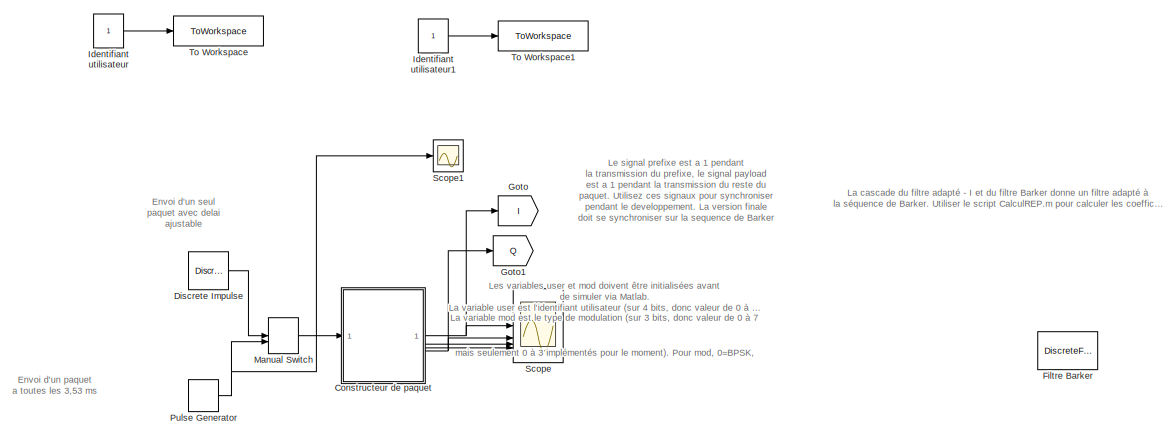
[diagram: root canvas - part 1/2, full width, top band]
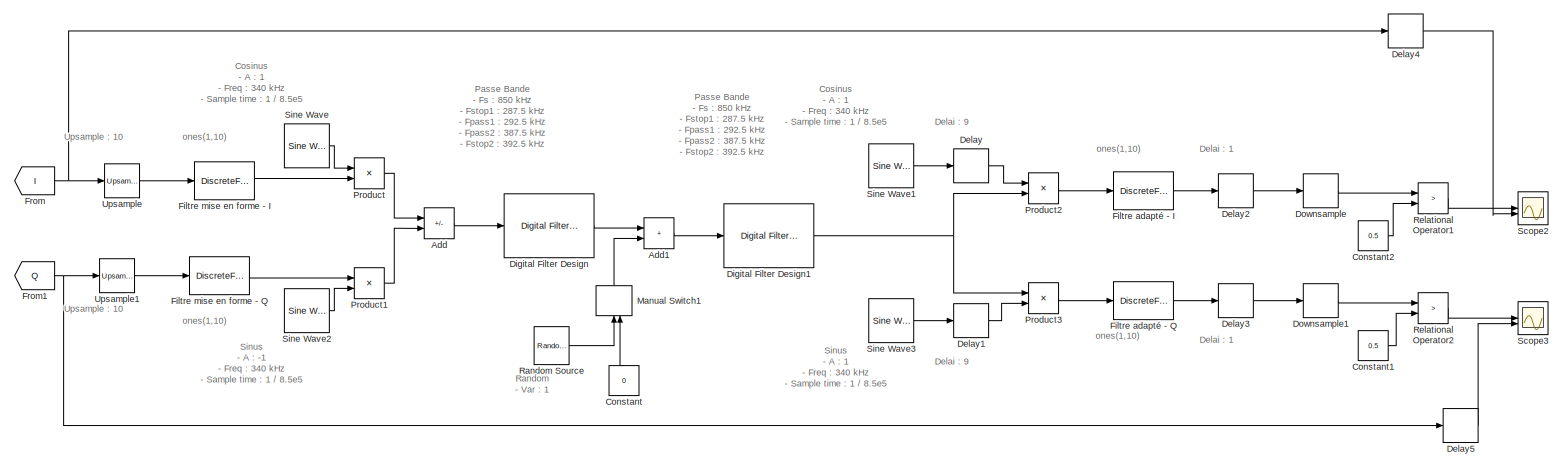
[diagram: root canvas - part 2/2, full width, bottom band]
MODEL slx_93e06d41ddc8
KIND model
CONFIG AbsTol = auto
CONFIG EnableMultiTasking = on
CONFIG FixedStep = auto
CONFIG MaxStep = auto
CONFIG MinStep = auto
CONFIG RelTol = 1e-3
CONFIG SampleTimeConstraint = Unconstrained
CONFIG SolverName = FixedStepDiscrete
CONFIG StartTime = 0.0
CONFIG StopTime = 0.004
BLOCK [Sum] Add
  IconShape = rectangular
  Inputs = +-
BLOCK [Sum] Add1
  IconShape = rectangular
BLOCK [Constant] Constant
  NameLocation = right
  Value = 0
BLOCK [Constant] Constant1
  Value = 0.5
BLOCK [Constant] Constant2
  Value = 0.5
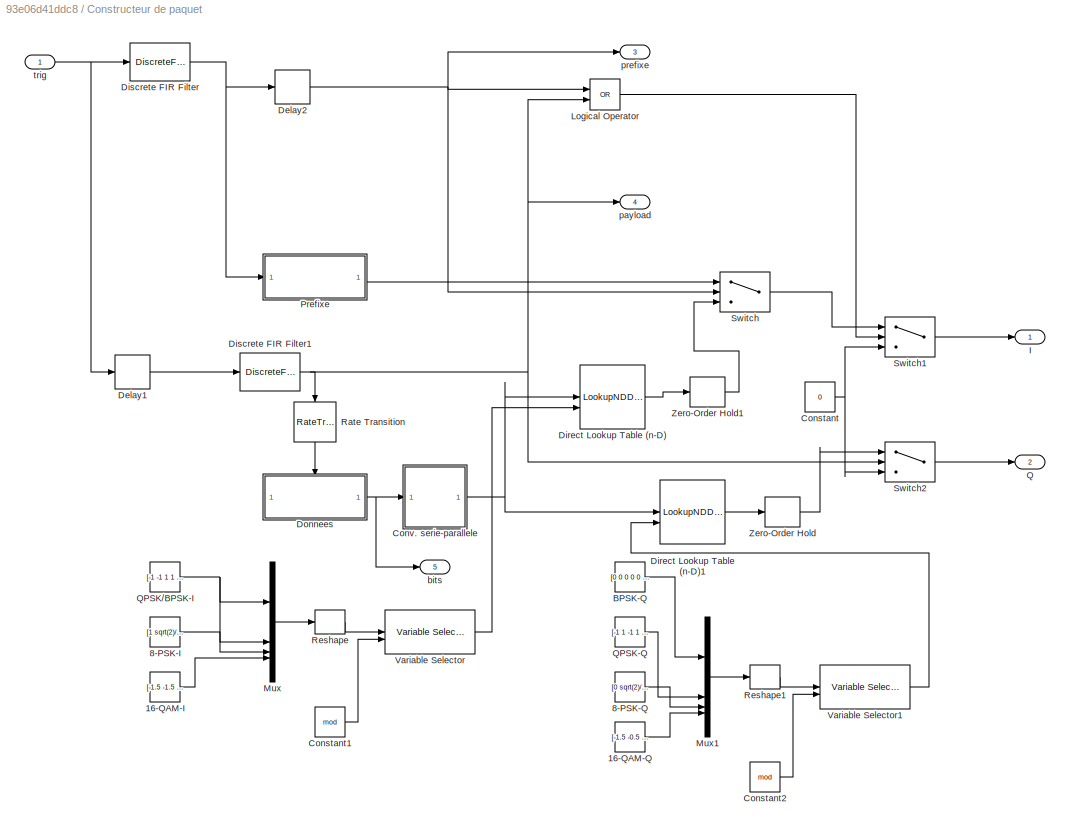
BLOCK [SubSystem] Constructeur de paquet
BLOCK [Constant] Constructeur de paquet/16-QAM-I
  Value = [-1.5 -1.5 -1.5 -1.5 -0.5 -0.5 -0.5 -0.5 1.5 1.5 1.5 1.5 0.5 0.5 0.5 0.5]
BLOCK [Constant] Constructeur de paquet/16-QAM-Q
  Value = [-1.5 -0.5 1.5 0.5 -1.5 -0.5 1.5 0.5 -1.5 -0.5 1.5 0.5 -1.5 -0.5 1.5 0.5]
BLOCK [Constant] Constructeur de paquet/8-PSK-I
  Value = [1 sqrt(2)/2 -sqrt(2)/2 0 -sqrt(2)/2 0 -1 sqrt(2)/2 1 sqrt(2)/2 -sqrt(2)/2 0 -sqrt(2)/2 0 -1 sqrt(2)/2]
BLOCK [Constant] Constructeur de paquet/8-PSK-Q
  Value = [0 sqrt(2)/2 sqrt(2)/2 1 -sqrt(2)/2 -1 0 -sqrt(2)/2 0 sqrt(2)/2 sqrt(2)/2 1 -sqrt(2)/2 -1 0 -sqrt(2)/2]
BLOCK [Constant] Constructeur de paquet/BPSK-Q
  Value = [0 0 0 0 0 0 0 0 0 0 0 0 0 0 0 0]
BLOCK [Constant] Constructeur de paquet/Constant
  Value = 0
BLOCK [Constant] Constructeur de paquet/Constant1
  Value = mod
BLOCK [Constant] Constructeur de paquet/Constant2
  Value = mod
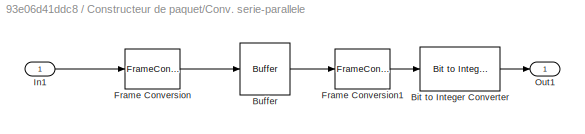
BLOCK [SubSystem] Constructeur de paquet/Conv. serie-parallele
  NameLocation = top
BLOCK [Reference] Constructeur de paquet/Conv. serie-parallele/Bit to Integer Converter  REF=simulink/Logic and Bit
Operations/Bit to Integer
Converter
  LibrarySourceBlock = commutil2/Bit to Integer\nConverter
  NameLocation = top
  SourceBlock = simulink/Logic and Bit\nOperations/Bit to Integer\nConverter
  SourceType = Bit to Integer Converter
BLOCK [Buffer] Constructeur de paquet/Conv. serie-parallele/Buffer
  N = 4
  NameLocation = top
BLOCK [FrameConversion] Constructeur de paquet/Conv. serie-parallele/Frame Conversion
BLOCK [FrameConversion] Constructeur de paquet/Conv. serie-parallele/Frame Conversion1
  NameLocation = top
  OutFrame = Sample-based
BLOCK [Inport] Constructeur de paquet/Conv. serie-parallele/In1
  NameLocation = top
BLOCK [Outport] Constructeur de paquet/Conv. serie-parallele/Out1
  NameLocation = top
  VectorParamsAs1DForOutWhenUnconnected = off
BLOCK [Delay] Constructeur de paquet/Delay1
  DelayLength = 21
  InputPortMap = u0
BLOCK [Delay] Constructeur de paquet/Delay2
  DelayLength = 1
  InputPortMap = u0
BLOCK [LookupNDDirect] Constructeur de paquet/Direct Lookup Table (n-D)
  NumberOfTableDimensions = 1
  Table = [0 2 3 2]
  TableIsInput = on
BLOCK [LookupNDDirect] Constructeur de paquet/Direct Lookup Table (n-D)1
  NumberOfTableDimensions = 1
  Table = [0 2 3 2]
  TableIsInput = on
BLOCK [DiscreteFir] Constructeur de paquet/Discrete FIR Filter
  Coefficients = ones(1,20)
  InputPortMap = u0
  OutputPortMap = o0
BLOCK [DiscreteFir] Constructeur de paquet/Discrete FIR Filter1
  Coefficients = ones(1,128)
  InputPortMap = u0
  OutputPortMap = o0
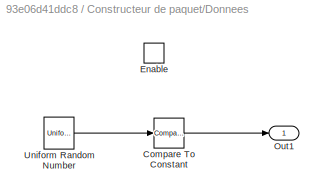
BLOCK [SubSystem] Constructeur de paquet/Donnees
  TreatAsAtomicUnit = on
BLOCK [Reference] Constructeur de paquet/Donnees/Compare To Constant  REF=simulink/Logic and Bit
Operations/Compare
To Constant
  SourceBlock = simulink/Logic and Bit\nOperations/Compare\nTo Constant
  SourceType = Compare To Constant
BLOCK [EnablePort] Constructeur de paquet/Donnees/Enable
BLOCK [Outport] Constructeur de paquet/Donnees/Out1
  VectorParamsAs1DForOutWhenUnconnected = off
BLOCK [UniformRandomNumber] Constructeur de paquet/Donnees/Uniform Random Number
  SampleTime = 1/340000
  Seed = 12
BLOCK [Outport] Constructeur de paquet/I
  VectorParamsAs1DForOutWhenUnconnected = off
BLOCK [Logic] Constructeur de paquet/Logical Operator
  AllPortsSameDT = off
  Operator = OR
  OutDataTypeStr = boolean
BLOCK [Mux] Constructeur de paquet/Mux
  DisplayOption = bar
BLOCK [Mux] Constructeur de paquet/Mux1
  DisplayOption = bar
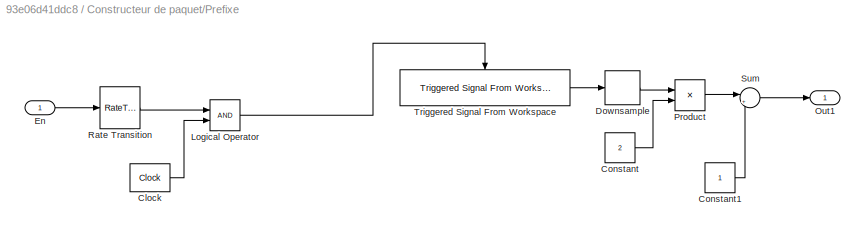
BLOCK [SubSystem] Constructeur de paquet/Prefixe 
  TreatAsAtomicUnit = on
BLOCK [Reference] Constructeur de paquet/Prefixe /Clock  REF=simulink_extras/Flip Flops/Clock
  SourceBlock = simulink_extras/Flip Flops/Clock
  SourceType = Digital clock
BLOCK [Constant] Constructeur de paquet/Prefixe /Constant
  Value = 2
BLOCK [Constant] Constructeur de paquet/Prefixe /Constant1
BLOCK [DownSample] Constructeur de paquet/Prefixe /Downsample
  InputProcessing = Elements as channels (sample based)
  RateOptions = Allow multirate processing
  UserDataPersistent = on
BLOCK [Inport] Constructeur de paquet/Prefixe /En
BLOCK [Logic] Constructeur de paquet/Prefixe /Logical Operator
  AllPortsSameDT = off
  OutDataTypeStr = boolean
BLOCK [Outport] Constructeur de paquet/Prefixe /Out1
  VectorParamsAs1DForOutWhenUnconnected = off
BLOCK [Product] Constructeur de paquet/Prefixe /Product
BLOCK [RateTransition] Constructeur de paquet/Prefixe /Rate Transition
  OutPortSampleTime = 1/170000
BLOCK [Sum] Constructeur de paquet/Prefixe /Sum
  Inputs = |+-
BLOCK [Reference] Constructeur de paquet/Prefixe /Triggered Signal From Workspace  REF=dspsigops/Triggered Signal
From Workspace
  SourceBlock = dspsigops/Triggered Signal\nFrom Workspace
  SourceType = Triggered Signal From Workspace
BLOCK [Outport] Constructeur de paquet/Q
  Port = 2
  VectorParamsAs1DForOutWhenUnconnected = off
BLOCK [Constant] Constructeur de paquet/QPSK-Q
  Value = [-1 1 -1 1 -1 1 -1 1 -1 1 -1 1 -1 1 -1 1]
BLOCK [Constant] Constructeur de paquet/QPSK//BPSK-I
  Value = [-1 -1 1 1 -1 -1 1 1 -1 -1 1 1 -1 -1 1 1 ]
BLOCK [RateTransition] Constructeur de paquet/Rate Transition
  NameLocation = left
BLOCK [Reshape] Constructeur de paquet/Reshape
  OutputDimensionality = Customize
  OutputDimensions = [16,4]
BLOCK [Reshape] Constructeur de paquet/Reshape1
  OutputDimensionality = Customize
  OutputDimensions = [16,4]
BLOCK [Switch] Constructeur de paquet/Switch
  Criteria = u2 > Threshold
  InputSameDT = off
  SaturateOnIntegerOverflow = off
BLOCK [Switch] Constructeur de paquet/Switch1
  Criteria = u2 > Threshold
  InputSameDT = off
  SaturateOnIntegerOverflow = off
BLOCK [Switch] Constructeur de paquet/Switch2
  Criteria = u2 > Threshold
  InputSameDT = off
  SaturateOnIntegerOverflow = off
BLOCK [Reference] Constructeur de paquet/Variable Selector  REF=dspindex/Variable
Selector
  SourceBlock = dspindex/Variable\nSelector
  SourceType = Variable Selector
BLOCK [Reference] Constructeur de paquet/Variable Selector1  REF=dspindex/Variable
Selector
  SourceBlock = dspindex/Variable\nSelector
  SourceType = Variable Selector
BLOCK [ZeroOrderHold] Constructeur de paquet/Zero-Order Hold
  SampleTime = 1/85000
BLOCK [ZeroOrderHold] Constructeur de paquet/Zero-Order Hold1
  SampleTime = 1/85000
BLOCK [Outport] Constructeur de paquet/bits
  Port = 5
  VectorParamsAs1DForOutWhenUnconnected = off
BLOCK [Outport] Constructeur de paquet/payload
  Port = 4
  VectorParamsAs1DForOutWhenUnconnected = off
BLOCK [Outport] Constructeur de paquet/prefixe
  Port = 3
  VectorParamsAs1DForOutWhenUnconnected = off
BLOCK [Inport] Constructeur de paquet/trig
BLOCK [Delay] Delay
  DelayLength = 9
  InputPortMap = u0
BLOCK [Delay] Delay1
  DelayLength = 9
  InputPortMap = u0
BLOCK [Delay] Delay2
  DelayLength = 1
  InputPortMap = u0
BLOCK [Delay] Delay3
  DelayLength = 1
  InputPortMap = u0
BLOCK [Delay] Delay4
  DelayLength = 32
  InputPortMap = u0
BLOCK [Delay] Delay5
  DelayLength = 32
  InputPortMap = u0
BLOCK [Reference] Digital Filter Design  REF=dspfdesign/Digital
Filter Design
  SourceBlock = dspfdesign/Digital\nFilter Design
  SourceType = Digital Filter Design
  UserDataPersistent = on
BLOCK [Reference] Digital Filter Design1  REF=dspfdesign/Digital
Filter Design
  SourceBlock = dspfdesign/Digital\nFilter Design
  SourceType = Digital Filter Design
  UserDataPersistent = on
BLOCK [Reference] Discrete Impulse  REF=dspsrcs4/Discrete 
Impulse
  SourceBlock = dspsrcs4/Discrete \nImpulse
  SourceType = Discrete Impulse
BLOCK [DownSample] Downsample
  N = 10
  RateOptions = Allow multirate processing
  UserDataPersistent = on
BLOCK [DownSample] Downsample1
  N = 10
  RateOptions = Allow multirate processing
  UserDataPersistent = on
BLOCK [DiscreteFir] Filtre Barker
  CloseFcn = dspblkCoreblockFVToolHelper(gcbh,'close');
  Coefficients = rep'
  Commented = on
  CopyFcn = dspblkCoreblockFVToolHelper(gcbh,'copy');
  DeleteFcn = dspblkCoreblockFVToolHelper(gcbh,'close');
  InputPortMap = u0
  LoadFcn = dspblkCoreblockFVToolHelper(gcbh,'load');
  ModelCloseFcn = dspblkCoreblockFVToolHelper(gcbh,'close');
  OutputPortMap = o0
  PostSaveFcn = dspblkCoreblockFVToolHelper(gcbh,'postsave');
  PreSaveFcn = dspblkCoreblockFVToolHelper(gcbh,'presave');
BLOCK [DiscreteFir] Filtre adapté - I
  CloseFcn = dspblkCoreblockFVToolHelper(gcbh,'close');
  Coefficients = ones(1,10)
  CopyFcn = dspblkCoreblockFVToolHelper(gcbh,'copy');
  DeleteFcn = dspblkCoreblockFVToolHelper(gcbh,'close');
  InputPortMap = u0
  LoadFcn = dspblkCoreblockFVToolHelper(gcbh,'load');
  ModelCloseFcn = dspblkCoreblockFVToolHelper(gcbh,'close');
  OutputPortMap = o0
  PostSaveFcn = dspblkCoreblockFVToolHelper(gcbh,'postsave');
  PreSaveFcn = dspblkCoreblockFVToolHelper(gcbh,'presave');
BLOCK [DiscreteFir] Filtre adapté - Q
  CloseFcn = dspblkCoreblockFVToolHelper(gcbh,'close');
  Coefficients = ones(1,10)
  CopyFcn = dspblkCoreblockFVToolHelper(gcbh,'copy');
  DeleteFcn = dspblkCoreblockFVToolHelper(gcbh,'close');
  InputPortMap = u0
  LoadFcn = dspblkCoreblockFVToolHelper(gcbh,'load');
  ModelCloseFcn = dspblkCoreblockFVToolHelper(gcbh,'close');
  OutputPortMap = o0
  PostSaveFcn = dspblkCoreblockFVToolHelper(gcbh,'postsave');
  PreSaveFcn = dspblkCoreblockFVToolHelper(gcbh,'presave');
BLOCK [DiscreteFir] Filtre mise en forme - I
  CloseFcn = dspblkCoreblockFVToolHelper(gcbh,'close');
  Coefficients = ones(1,10)
  CopyFcn = dspblkCoreblockFVToolHelper(gcbh,'copy');
  DeleteFcn = dspblkCoreblockFVToolHelper(gcbh,'close');
  InputPortMap = u0
  LoadFcn = dspblkCoreblockFVToolHelper(gcbh,'load');
  ModelCloseFcn = dspblkCoreblockFVToolHelper(gcbh,'close');
  OutputPortMap = o0
  PostSaveFcn = dspblkCoreblockFVToolHelper(gcbh,'postsave');
  PreSaveFcn = dspblkCoreblockFVToolHelper(gcbh,'presave');
BLOCK [DiscreteFir] Filtre mise en forme - Q
  CloseFcn = dspblkCoreblockFVToolHelper(gcbh,'close');
  Coefficients = ones(1,10)
  CopyFcn = dspblkCoreblockFVToolHelper(gcbh,'copy');
  DeleteFcn = dspblkCoreblockFVToolHelper(gcbh,'close');
  InputPortMap = u0
  LoadFcn = dspblkCoreblockFVToolHelper(gcbh,'load');
  ModelCloseFcn = dspblkCoreblockFVToolHelper(gcbh,'close');
  OutputPortMap = o0
  PostSaveFcn = dspblkCoreblockFVToolHelper(gcbh,'postsave');
  PreSaveFcn = dspblkCoreblockFVToolHelper(gcbh,'presave');
BLOCK [From] From
  GotoTag = I
BLOCK [From] From1
  GotoTag = Q
BLOCK [Goto] Goto
  GotoTag = I
BLOCK [Goto] Goto1
  GotoTag = Q
BLOCK [Constant] Identifiant utilisateur
  VectorParams1D = off
BLOCK [Constant] Identifiant utilisateur1
  VectorParams1D = off
BLOCK [ManualSwitch] Manual Switch
  CurrentSetting = 0
BLOCK [ManualSwitch] Manual Switch1
  NameLocation = right
BLOCK [Product] Product
BLOCK [Product] Product1
BLOCK [Product] Product2
BLOCK [Product] Product3
BLOCK [DiscretePulseGenerator] Pulse Generator
  Period = 300
  SampleTime = 1/85000
BLOCK [Reference] Random Source  REF=dspobslib/Random
Source
  Diagnostics = AllowInheritedTsInSrc
  NameLocation = top
  SourceBlock = dspobslib/Random\nSource
  SourceType = Random Source Obsolete
  UserDataPersistent = on
BLOCK [RelationalOperator] Relational Operator1
  InputSameDT = off
  Operator = >
  OutDataTypeStr = boolean
BLOCK [RelationalOperator] Relational Operator2
  InputSameDT = off
  Operator = >
  OutDataTypeStr = boolean
BLOCK [Scope] Scope
  ActiveDisplayYMaximum = 1.25
  ActiveDisplayYMinimum = -1.25
  DataLoggingDecimateData = on
  DataLoggingDecimation = 1
  DataLoggingLimitDataPoints = on
  DataLoggingSaveFormat = Structure With Time
  DataLoggingVariableName = ScopeData1
  Floating = off
  GraphicalSettings = {"GraphicalSettings":{"LegacySettings":true,"Style":{"AxesScalingProperties":{"ScaleAxesLimitsAtStop":false},"Style":{"AxesColor":"[0 0 0]","ChannelNames":["","","",""],"ColorOrder":"[1 1 0.0666666666666667;0.0745098039215686 0.623529411764706 1;1 0.411764705882353 0.16078431372549;0.392156862745098 0.831372549019608 0.0745098039215686;0.717647058823529 0.274509803921569 1;0.0588235294117647 1 1;1...<+544ch>
  LayoutDimensionsString = [4 1]
  MultipleDisplayCache = [{"MaxYLimMag":1.25,"MaxYLimReal":1.25,"MinYLimMag":0,"MinYLimReal":-1.25,"PlotAsMagnitudePhase":false,"ShowGrid":true,"ShowLegend":false,"Title":"%<SignalLabel>","YLabel":""},{"MaxYLimMag":10,"MaxYLimReal":1,"MinYLimMag":0,"MinYLimReal":-1,"PlotAsMagnitudePhase":false,"ShowGrid":true,"ShowLegend":false,"Title":"%<SignalLabel>","YLabel":""},{"MaxYLimMag":10,"MaxYLimReal":1.125,"MinYLimMag":0,"MinY...<+293ch>
  NumInputPorts = 4
  WasSavedAsWebScope = on
  WindowPosition = [-1149 -28 1023 610]
BLOCK [Scope] Scope1
  ActiveDisplayYMaximum = 1.125
  ActiveDisplayYMinimum = -0.125
  Floating = off
  GraphicalSettings = {"GraphicalSettings":{"LegacySettings":true,"Style":{"Style":{"AxesColor":"[0 0 0]","ChannelNames":[""],"ColorOrder":"[1 1 0.0666666666666667;0.0745098039215686 0.623529411764706 1;1 0.411764705882353 0.16078431372549;0.392156862745098 0.831372549019608 0.0745098039215686;0.717647058823529 0.274509803921569 1;0.0588235294117647 1 1;1 0.0745098039215686 0.650980392156863]","CurrentConfiguration":"e...<+343ch>
  MultipleDisplayCache = [{"MaxYLimMag":1.125,"MaxYLimReal":1.125,"MinYLimMag":0,"MinYLimReal":-0.125,"PlotAsMagnitudePhase":false,"ShowGrid":true,"ShowLegend":false,"Title":"%<SignalLabel>","YLabel":""}]
  NumInputPorts = 1
  WasSavedAsWebScope = on
  WindowPosition = [-1006 338 765 420]
BLOCK [Scope] Scope2
  ActiveDisplayYMaximum = 5.983050743676344
  ActiveDisplayYMinimum = -5.2441766728851329
  DataLoggingVariableName = ScopeData2
  Floating = off
  GraphicalSettings = {"AxesScalingProperties":{"AlignXAxis":"Center","AlignYAxis":"Center","AutoScaleXAxisLimits":false,"AxesScaling":"Manual","AxesScalingNumUpdates":10,"ExpandOnly":true,"ScaleAxesLimitsAtStop":false,"XAxisDataRange":100,"YAxisDataRange":80},"DisplayProperties":{"ColorOrder":["auto","auto","auto","auto","auto","auto","auto","auto","auto","auto","auto","auto","auto","auto","auto","auto","auto","auto",...<+2336ch>
  LayoutDimensionsString = [2,1]
  MultipleDisplayCache = [{"MaxYLimMag":1.25,"MaxYLimReal":5.983050743676344,"MinYLimMag":0,"MinYLimReal":-5.2441766728851329,"PlotAsMagnitudePhase":false,"ShowGrid":true,"ShowLegend":false,"Title":"%<SignalLabel>","YLabel":""},{"MaxYLimMag":1.25,"MaxYLimReal":1.25,"MinYLimMag":0,"MinYLimReal":-1.25,"PlotAsMagnitudePhase":false,"ShowGrid":true,"ShowLegend":false,"Title":"%<SignalLabel>","YLabel":""}]
  NumInputPorts = 2
  ScopeFrameLocation = window
  WasSavedAsWebScope = on
  WindowPosition = [1.000000,41.000000,1536.000000,801.000000,]
BLOCK [Scope] Scope3
  ActiveDisplayYMaximum = 5.074688531670164
  ActiveDisplayYMinimum = -1.4752493543339364
  DataLoggingVariableName = ScopeData3
  Floating = off
  GraphicalSettings = {"AxesScalingProperties":{"AlignXAxis":"Center","AlignYAxis":"Center","AutoScaleXAxisLimits":false,"AxesScaling":"Manual","AxesScalingNumUpdates":10,"ExpandOnly":true,"ScaleAxesLimitsAtStop":false,"XAxisDataRange":100,"YAxisDataRange":80},"DisplayProperties":{"ColorOrder":["auto","auto","auto","auto","auto","auto","auto","auto","auto","auto","auto","auto","auto","auto","auto","auto","auto","auto",...<+2397ch>
  LayoutDimensionsString = [2,1]
  MultipleDisplayCache = [{"MaxYLimMag":1.25,"MaxYLimReal":5.074688531670164,"MinYLimMag":0,"MinYLimReal":-1.4752493543339364,"PlotAsMagnitudePhase":false,"ShowGrid":true,"ShowLegend":false,"Title":"%<SignalLabel>","YLabel":""},{"MaxYLimMag":1.25,"MaxYLimReal":1.0867525316932585,"MinYLimMag":0,"MinYLimReal":0.866535235031088,"PlotAsMagnitudePhase":false,"ShowGrid":true,"ShowLegend":false,"Title":"%<SignalLabel>","YLabel":...<+4ch>
  NumInputPorts = 2
  ScopeFrameLocation = window
  WasSavedAsWebScope = on
  WindowPosition = [1.000000,41.000000,1536.000000,801.000000,]
BLOCK [Reference] Sine Wave  REF=dspsrcs4/Sine Wave
  SourceBlock = dspsrcs4/Sine Wave
  SourceType = Sine Wave
BLOCK [Reference] Sine Wave1  REF=dspsrcs4/Sine Wave
  SourceBlock = dspsrcs4/Sine Wave
  SourceType = Sine Wave
BLOCK [Reference] Sine Wave2  REF=dspsrcs4/Sine Wave
  SourceBlock = dspsrcs4/Sine Wave
  SourceType = Sine Wave
BLOCK [Reference] Sine Wave3  REF=dspsrcs4/Sine Wave
  SourceBlock = dspsrcs4/Sine Wave
  SourceType = Sine Wave
BLOCK [ToWorkspace] To Workspace
  FixptAsFi = on
  MaxDataPoints = inf
  SampleTime = -1
  Save2DSignal = 2-D array (concatenate along first dimension)
  VariableName = user
BLOCK [ToWorkspace] To Workspace1
  FixptAsFi = on
  MaxDataPoints = inf
  SampleTime = -1
  Save2DSignal = 2-D array (concatenate along first dimension)
  VariableName = mod
BLOCK [Reference] Upsample  REF=dspsigops/Upsample
  SourceBlock = dspsigops/Upsample
  SourceType = Upsample
  UserDataPersistent = on
BLOCK [Reference] Upsample1  REF=dspsigops/Upsample
  SourceBlock = dspsigops/Upsample
  SourceType = Upsample
  UserDataPersistent = on
ANNOTATION (root): La cascade du filtre adapté - I et du filtre Barker donne un filtre adapté à la séquence de Barker. Utiliser le script CalculREP.m pour calculer les coefficients du second filtre.
ANNOTATION (root): Le signal prefixe est a 1 pendant la transmission du prefixe, le signal payload est a 1 pendant la transmission du reste du paquet. Utilisez ces signaux pour synchroniser pendant le developpement. La version finale doit se synchroniser sur la sequence de Barker
ANNOTATION (root): Cosinus - A : 1 - Freq : 340 kHz - Sample time : 1 / 8.5e5
ANNOTATION (root): Delai : 1
ANNOTATION (root): Delai : 9
ANNOTATION (root): Envoi d'un paquet a toutes les 3,53 ms
ANNOTATION (root): Envoi d'un seul paquet avec delai ajustable
ANNOTATION (root): Les variables user et mod doivent être initialisées avant de simuler via Matlab. La variable user est l'identifiant utilisateur (sur 4 bits, donc valeur de 0 à 15). La variable mod est le type de modulation (sur 3 bits, donc valeur de 0 à 7 mais seulement 0 à 3 implémentés pour le moment). Pour mod, 0=BPSK, 1=QPSK, 2=8-PSK et 3=16-QAM. Vous pouvez aussi initaliser ces variables via les constantes ...<+179ch>
ANNOTATION (root): Passe Bande - Fs : 850 kHz - Fstop1 : 287.5 kHz - Fpass1 : 292.5 kHz - Fpass2 : 387.5 kHz - Fstop2 : 392.5 kHz - Astop1 : 50 dB - Apass : 1 dB - Astop2 : 50 dB
ANNOTATION (root): Random - Var : 1
ANNOTATION (root): Sinus - A : -1 - Freq : 340 kHz - Sample time : 1 / 8.5e5
ANNOTATION (root): Sinus - A : 1 - Freq : 340 kHz - Sample time : 1 / 8.5e5
ANNOTATION (root): Upsample : 10
ANNOTATION (root): ones(1,10)
LINE Add1:1 -> Digital Filter Design1:1
LINE Add:1 -> Digital Filter Design:1
LINE Constant1:1 -> Relational Operator2:2
LINE Constant2:1 -> Relational Operator1:2
LINE Constant:1 -> Manual Switch1:2
LINE Constructeur de paquet/16-QAM-I:1 -> Constructeur de paquet/Mux:4
LINE Constructeur de paquet/16-QAM-Q:1 -> Constructeur de paquet/Mux1:4
LINE Constructeur de paquet/8-PSK-I:1 -> Constructeur de paquet/Mux:3
LINE Constructeur de paquet/8-PSK-Q:1 -> Constructeur de paquet/Mux1:3
LINE Constructeur de paquet/BPSK-Q:1 -> Constructeur de paquet/Mux1:1
LINE Constructeur de paquet/Constant1:1 -> Constructeur de paquet/Variable Selector:2
LINE Constructeur de paquet/Constant2:1 -> Constructeur de paquet/Variable Selector1:2
NET Constructeur de paquet/Constant:1 -> Constructeur de paquet/Switch1:3, Constructeur de paquet/Switch2:3
LINE Constructeur de paquet/Conv. serie-parallele/Bit to Integer Converter:1 -> Constructeur de paquet/Conv. serie-parallele/Out1:1
LINE Constructeur de paquet/Conv. serie-parallele/Buffer:1 -> Constructeur de paquet/Conv. serie-parallele/Frame Conversion1:1
LINE Constructeur de paquet/Conv. serie-parallele/Frame Conversion1:1 -> Constructeur de paquet/Conv. serie-parallele/Bit to Integer Converter:1
LINE Constructeur de paquet/Conv. serie-parallele/Frame Conversion:1 -> Constructeur de paquet/Conv. serie-parallele/Buffer:1
LINE Constructeur de paquet/Conv. serie-parallele/In1:1 -> Constructeur de paquet/Conv. serie-parallele/Frame Conversion:1
NET Constructeur de paquet/Conv. serie-parallele:1 -> Constructeur de paquet/Direct Lookup Table (n-D)1:1, Constructeur de paquet/Direct Lookup Table (n-D):1
LINE Constructeur de paquet/Delay1:1 -> Constructeur de paquet/Discrete FIR Filter1:1
NET Constructeur de paquet/Delay2:1 -> Constructeur de paquet/Logical Operator:1, Constructeur de paquet/Switch:2, Constructeur de paquet/prefixe:1
LINE Constructeur de paquet/Direct Lookup Table (n-D)1:1 -> Constructeur de paquet/Zero-Order Hold:1
LINE Constructeur de paquet/Direct Lookup Table (n-D):1 -> Constructeur de paquet/Zero-Order Hold1:1
NET Constructeur de paquet/Discrete FIR Filter1:1 -> Constructeur de paquet/Logical Operator:2, Constructeur de paquet/Rate Transition:1, Constructeur de paquet/Switch2:2, Constructeur de paquet/payload:1
NET Constructeur de paquet/Discrete FIR Filter:1 -> Constructeur de paquet/Delay2:1, Constructeur de paquet/Prefixe :1
LINE Constructeur de paquet/Donnees/Compare To Constant:1 -> Constructeur de paquet/Donnees/Out1:1
LINE Constructeur de paquet/Donnees/Uniform Random Number:1 -> Constructeur de paquet/Donnees/Compare To Constant:1
NET Constructeur de paquet/Donnees:1 -> Constructeur de paquet/Conv. serie-parallele:1, Constructeur de paquet/bits:1
LINE Constructeur de paquet/Logical Operator:1 -> Constructeur de paquet/Switch1:2
LINE Constructeur de paquet/Mux1:1 -> Constructeur de paquet/Reshape1:1
LINE Constructeur de paquet/Mux:1 -> Constructeur de paquet/Reshape:1
LINE Constructeur de paquet/Prefixe /Clock:1 -> Constructeur de paquet/Prefixe /Logical Operator:2
LINE Constructeur de paquet/Prefixe /Constant1:1 -> Constructeur de paquet/Prefixe /Sum:2
LINE Constructeur de paquet/Prefixe /Constant:1 -> Constructeur de paquet/Prefixe /Product:2
LINE Constructeur de paquet/Prefixe /Downsample:1 -> Constructeur de paquet/Prefixe /Product:1
LINE Constructeur de paquet/Prefixe /En:1 -> Constructeur de paquet/Prefixe /Rate Transition:1
LINE Constructeur de paquet/Prefixe /Logical Operator:1 -> Constructeur de paquet/Prefixe /Triggered Signal From Workspace:trigger
LINE Constructeur de paquet/Prefixe /Product:1 -> Constructeur de paquet/Prefixe /Sum:1
LINE Constructeur de paquet/Prefixe /Rate Transition:1 -> Constructeur de paquet/Prefixe /Logical Operator:1
LINE Constructeur de paquet/Prefixe /Sum:1 -> Constructeur de paquet/Prefixe /Out1:1
LINE Constructeur de paquet/Prefixe /Triggered Signal From Workspace:1 -> Constructeur de paquet/Prefixe /Downsample:1
LINE Constructeur de paquet/Prefixe :1 -> Constructeur de paquet/Switch:1
LINE Constructeur de paquet/QPSK-Q:1 -> Constructeur de paquet/Mux1:2
NET Constructeur de paquet/QPSK//BPSK-I:1 -> Constructeur de paquet/Mux:1, Constructeur de paquet/Mux:2
LINE Constructeur de paquet/Rate Transition:1 -> Constructeur de paquet/Donnees:enable
LINE Constructeur de paquet/Reshape1:1 -> Constructeur de paquet/Variable Selector1:1
LINE Constructeur de paquet/Reshape:1 -> Constructeur de paquet/Variable Selector:1
LINE Constructeur de paquet/Switch1:1 -> Constructeur de paquet/I:1
LINE Constructeur de paquet/Switch2:1 -> Constructeur de paquet/Q:1
LINE Constructeur de paquet/Switch:1 -> Constructeur de paquet/Switch1:1
LINE Constructeur de paquet/Variable Selector1:1 -> Constructeur de paquet/Direct Lookup Table (n-D)1:2
LINE Constructeur de paquet/Variable Selector:1 -> Constructeur de paquet/Direct Lookup Table (n-D):2
LINE Constructeur de paquet/Zero-Order Hold1:1 -> Constructeur de paquet/Switch:3
LINE Constructeur de paquet/Zero-Order Hold:1 -> Constructeur de paquet/Switch2:1
NET Constructeur de paquet/trig:1 -> Constructeur de paquet/Delay1:1, Constructeur de paquet/Discrete FIR Filter:1
NET Constructeur de paquet:1 -> Goto:1, Scope:1
NET Constructeur de paquet:2 -> Goto1:1, Scope:2
LINE Constructeur de paquet:3 -> Scope:3
LINE Constructeur de paquet:4 -> Scope:4
LINE Delay1:1 -> Product3:2
LINE Delay2:1 -> Downsample:1
LINE Delay3:1 -> Downsample1:1
LINE Delay4:1 -> Scope2:2
LINE Delay5:1 -> Scope3:2
LINE Delay:1 -> Product2:1
NET Digital Filter Design1:1 -> Product2:2, Product3:1
LINE Digital Filter Design:1 -> Add1:1
LINE Discrete Impulse:1 -> Manual Switch:1
LINE Downsample1:1 -> Relational Operator2:1
LINE Downsample:1 -> Relational Operator1:1
LINE Filtre adapté - I:1 -> Delay2:1
LINE Filtre adapté - Q:1 -> Delay3:1
LINE Filtre mise en forme - I:1 -> Product:2
LINE Filtre mise en forme - Q:1 -> Product1:1
NET From1:1 -> Delay5:1, Upsample1:1
NET From:1 -> Delay4:1, Upsample:1
LINE Identifiant utilisateur1:1 -> To Workspace1:1
LINE Identifiant utilisateur:1 -> To Workspace:1
LINE Manual Switch1:1 -> Add1:2
LINE Manual Switch:1 -> Constructeur de paquet:1
LINE Product1:1 -> Add:2
LINE Product2:1 -> Filtre adapté - I:1
LINE Product3:1 -> Filtre adapté - Q:1
LINE Product:1 -> Add:1
NET Pulse Generator:1 -> Manual Switch:2, Scope1:1
LINE Random Source:1 -> Manual Switch1:1
LINE Relational Operator1:1 -> Scope2:1
LINE Relational Operator2:1 -> Scope3:1
LINE Sine Wave1:1 -> Delay:1
LINE Sine Wave2:1 -> Product1:2
LINE Sine Wave3:1 -> Delay1:1
LINE Sine Wave:1 -> Product:1
LINE Upsample1:1 -> Filtre mise en forme - Q:1
LINE Upsample:1 -> Filtre mise en forme - I:1
note: NET lines group one-source signal fan-out (src -> all destinations, sorted); 1:1 wires keep LINE
